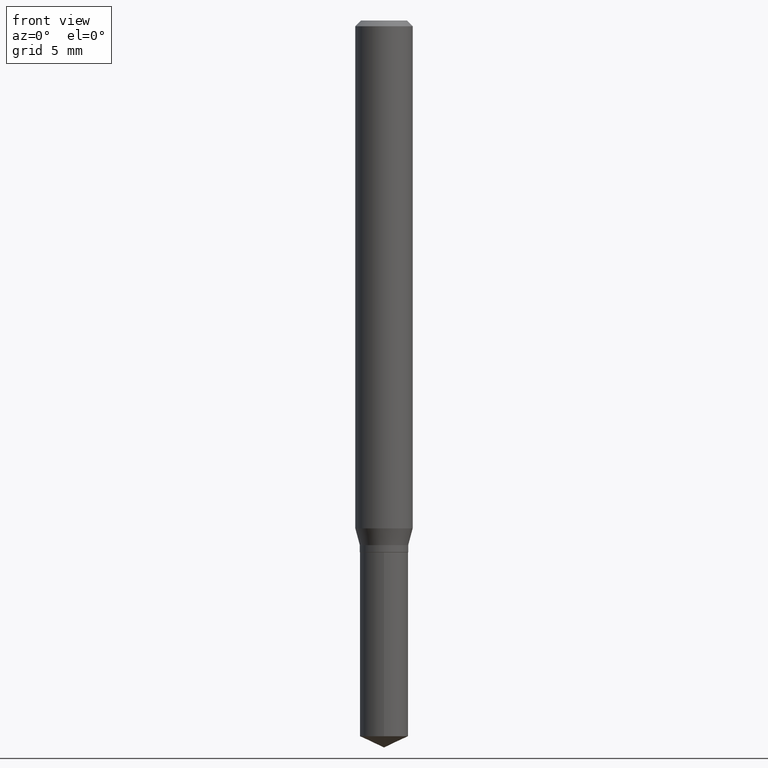
[diagram: clean part render]
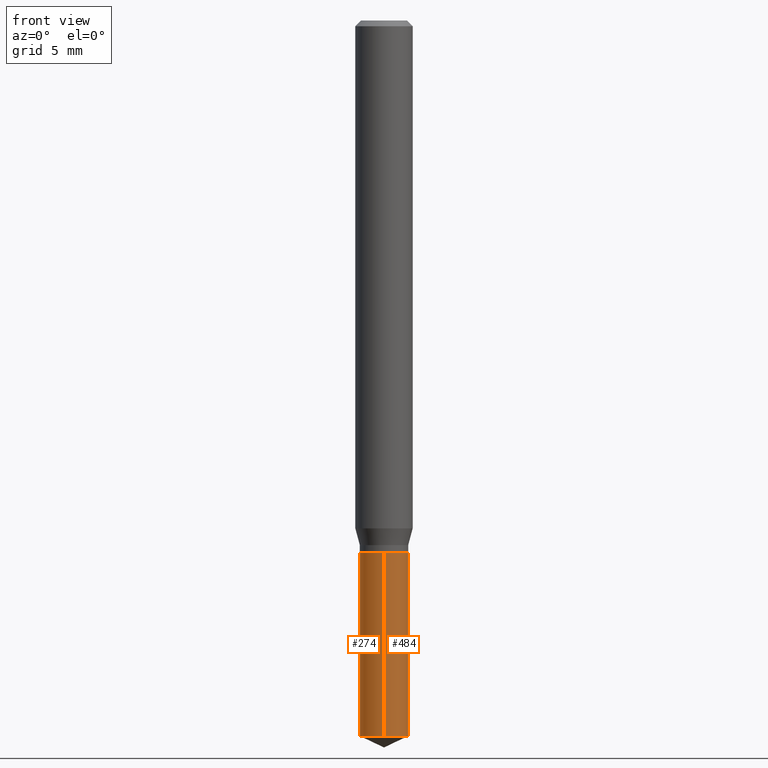
[diagram: same view with one multi-face feature highlighted, each face labeled with its STEP entity id]
A machine part, front view. The highlighted faces form ONE feature: a constant-radius fillet chain: 2 tangent blend faces with common blend radius 1.2649 mm. The faces share edges in the B-rep.
Their STEP definitions:
[1] entity #274 (Cylinder):
#15 = DIRECTION ( 'NONE',  ( -2.445458899330790108E-29, 3.491495526022433205E-15, 1.000000000000000000 ) ) ;
#17 = DIRECTION ( 'NONE',  ( -6.982962677686265922E-15, -1.000000000000000000, 2.742819270747252436E-15 ) ) ;
#21 = CARTESIAN_POINT ( 'NONE',  ( 2.676565608369631794E-29, -3.821426325363822773E-15, -1.094499999999999806 ) ) ;
#31 = EDGE_LOOP ( 'NONE', ( #172, #152, #477, #141 ) ) ;
#62 = DIRECTION ( 'NONE',  ( -2.445458899330790108E-29, 3.491495526022433205E-15, 1.000000000000000000 ) ) ;
#68 = DIRECTION ( 'NONE',  ( -6.982962677686265922E-15, -1.000000000000000000, 5.485638541494504873E-15 ) ) ;
#133 = EDGE_CURVE ( 'NONE', #369, #136, #386, .T. ) ;
#136 = VERTEX_POINT ( 'NONE', #464 ) ;
#140 = CYLINDRICAL_SURFACE ( 'NONE', #332, 0.04979999999999999705 ) ;
#141 = ORIENTED_EDGE ( 'NONE', *, *, #133, .F. ) ;
#152 = ORIENTED_EDGE ( 'NONE', *, *, #364, .T. ) ;
#156 = VECTOR ( 'NONE', #248, 39.37007874015748143 ) ;
#171 = CARTESIAN_POINT ( 'NONE',  ( -3.477515413487399930E-16, -0.04980000000000512489, -1.472877878623880976 ) ) ;
#172 = ORIENTED_EDGE ( 'NONE', *, *, #336, .F. ) ;
#173 = DIRECTION ( 'NONE',  ( -2.445458899330790108E-29, 3.491495526022433599E-15, 1.000000000000000000 ) ) ;
#200 = VECTOR ( 'NONE', #173, 39.37007874015748143 ) ;
#248 = DIRECTION ( 'NONE',  ( -2.445458899330790108E-29, 3.491495526022433599E-15, 1.000000000000000000 ) ) ;
#250 = AXIS2_PLACEMENT_3D ( 'NONE', #397, #62, #68 ) ;
#251 = FACE_OUTER_BOUND ( 'NONE', #31, .T. ) ;
#253 = CARTESIAN_POINT ( 'NONE',  ( 3.538502824085657648E-16, 0.04979999999999484839, -1.472877878623881642 ) ) ;
#266 = VERTEX_POINT ( 'NONE', #171 ) ;
#274 = ADVANCED_FACE ( 'NONE', ( #251 ), #140, .T. ) ;
#280 = CARTESIAN_POINT ( 'NONE',  ( -3.477515413487492621E-16, -0.04980000000000382038, -1.094499999999999806 ) ) ;
#299 = VERTEX_POINT ( 'NONE', #253 ) ;
#311 = EDGE_CURVE ( 'NONE', #266, #136, #469, .T. ) ;
#316 = DIRECTION ( 'NONE',  ( -2.445458899330790108E-29, 3.491495526022433205E-15, 1.000000000000000000 ) ) ;
#322 = CIRCLE ( 'NONE', #250, 0.04979999999999999705 ) ;
#332 = AXIS2_PLACEMENT_3D ( 'NONE', #21, #316, #17 ) ;
#336 = EDGE_CURVE ( 'NONE', #299, #369, #476, .T. ) ;
#348 = CARTESIAN_POINT ( 'NONE',  ( 2.676565608369631794E-29, -3.821426325363822773E-15, -1.094499999999999806 ) ) ;
#364 = EDGE_CURVE ( 'NONE', #299, #266, #322, .T. ) ;
#369 = VERTEX_POINT ( 'NONE', #437 ) ;
#386 = CIRCLE ( 'NONE', #448, 0.04979999999999999705 ) ;
#397 = CARTESIAN_POINT ( 'NONE',  ( 3.601873158960308379E-29, -5.142530995724963352E-15, -1.472877878623881420 ) ) ;
#411 = CARTESIAN_POINT ( 'NONE',  ( 3.538502824085565449E-16, 0.04979999999999617372, -1.094500000000000028 ) ) ;
#426 = DIRECTION ( 'NONE',  ( -6.982962677686265922E-15, -1.000000000000000000, 2.742819270747252436E-15 ) ) ;
#437 = CARTESIAN_POINT ( 'NONE',  ( 3.538502824085658634E-16, 0.04979999999999616678, -1.094500000000000028 ) ) ;
#448 = AXIS2_PLACEMENT_3D ( 'NONE', #348, #15, #426 ) ;
#464 = CARTESIAN_POINT ( 'NONE',  ( -3.477515413487492621E-16, -0.04980000000000382038, -1.094499999999999806 ) ) ;
#469 = LINE ( 'NONE', #280, #156 ) ;
#476 = LINE ( 'NONE', #411, #200 ) ;
#477 = ORIENTED_EDGE ( 'NONE', *, *, #311, .T. ) ;
[2] entity #484 (Cylinder):
#34 = FACE_OUTER_BOUND ( 'NONE', #419, .T. ) ;
#66 = DIRECTION ( 'NONE',  ( -6.982962677686265922E-15, -1.000000000000000000, 5.485638541494504873E-15 ) ) ;
#106 = ORIENTED_EDGE ( 'NONE', *, *, #427, .T. ) ;
#115 = DIRECTION ( 'NONE',  ( -6.982962677686265922E-15, -1.000000000000000000, 2.742819270747252436E-15 ) ) ;
#122 = EDGE_CURVE ( 'NONE', #136, #369, #370, .T. ) ;
#136 = VERTEX_POINT ( 'NONE', #464 ) ;
#156 = VECTOR ( 'NONE', #248, 39.37007874015748143 ) ;
#171 = CARTESIAN_POINT ( 'NONE',  ( -3.477515413487399930E-16, -0.04980000000000512489, -1.472877878623880976 ) ) ;
#173 = DIRECTION ( 'NONE',  ( -2.445458899330790108E-29, 3.491495526022433599E-15, 1.000000000000000000 ) ) ;
#182 = CARTESIAN_POINT ( 'NONE',  ( 2.676565608369631794E-29, -3.821426325363822773E-15, -1.094499999999999806 ) ) ;
#200 = VECTOR ( 'NONE', #173, 39.37007874015748143 ) ;
#234 = CIRCLE ( 'NONE', #462, 0.04979999999999999705 ) ;
#248 = DIRECTION ( 'NONE',  ( -2.445458899330790108E-29, 3.491495526022433599E-15, 1.000000000000000000 ) ) ;
#253 = CARTESIAN_POINT ( 'NONE',  ( 3.538502824085657648E-16, 0.04979999999999484839, -1.472877878623881642 ) ) ;
#260 = DIRECTION ( 'NONE',  ( -2.445458899330790108E-29, 3.491495526022433205E-15, 1.000000000000000000 ) ) ;
#266 = VERTEX_POINT ( 'NONE', #171 ) ;
#271 = DIRECTION ( 'NONE',  ( -6.982962677686265922E-15, -1.000000000000000000, 2.742819270747252436E-15 ) ) ;
#276 = DIRECTION ( 'NONE',  ( -2.445458899330790108E-29, 3.491495526022433205E-15, 1.000000000000000000 ) ) ;
#280 = CARTESIAN_POINT ( 'NONE',  ( -3.477515413487492621E-16, -0.04980000000000382038, -1.094499999999999806 ) ) ;
#285 = DIRECTION ( 'NONE',  ( -2.445458899330790108E-29, 3.491495526022433205E-15, 1.000000000000000000 ) ) ;
#299 = VERTEX_POINT ( 'NONE', #253 ) ;
#311 = EDGE_CURVE ( 'NONE', #266, #136, #469, .T. ) ;
#317 = ORIENTED_EDGE ( 'NONE', *, *, #336, .T. ) ;
#321 = AXIS2_PLACEMENT_3D ( 'NONE', #457, #276, #271 ) ;
#336 = EDGE_CURVE ( 'NONE', #299, #369, #476, .T. ) ;
#363 = AXIS2_PLACEMENT_3D ( 'NONE', #182, #260, #115 ) ;
#369 = VERTEX_POINT ( 'NONE', #437 ) ;
#370 = CIRCLE ( 'NONE', #321, 0.04979999999999999705 ) ;
#411 = CARTESIAN_POINT ( 'NONE',  ( 3.538502824085565449E-16, 0.04979999999999617372, -1.094500000000000028 ) ) ;
#412 = ORIENTED_EDGE ( 'NONE', *, *, #122, .F. ) ;
#414 = CYLINDRICAL_SURFACE ( 'NONE', #363, 0.04979999999999999705 ) ;
#419 = EDGE_LOOP ( 'NONE', ( #106, #317, #412, #490 ) ) ;
#427 = EDGE_CURVE ( 'NONE', #266, #299, #234, .T. ) ;
#437 = CARTESIAN_POINT ( 'NONE',  ( 3.538502824085658634E-16, 0.04979999999999616678, -1.094500000000000028 ) ) ;
#457 = CARTESIAN_POINT ( 'NONE',  ( 2.676565608369631794E-29, -3.821426325363822773E-15, -1.094499999999999806 ) ) ;
#462 = AXIS2_PLACEMENT_3D ( 'NONE', #471, #285, #66 ) ;
#464 = CARTESIAN_POINT ( 'NONE',  ( -3.477515413487492621E-16, -0.04980000000000382038, -1.094499999999999806 ) ) ;
#469 = LINE ( 'NONE', #280, #156 ) ;
#471 = CARTESIAN_POINT ( 'NONE',  ( 3.601873158960308379E-29, -5.142530995724963352E-15, -1.472877878623881420 ) ) ;
#476 = LINE ( 'NONE', #411, #200 ) ;
#484 = ADVANCED_FACE ( 'NONE', ( #34 ), #414, .T. ) ;
#490 = ORIENTED_EDGE ( 'NONE', *, *, #311, .F. ) ;